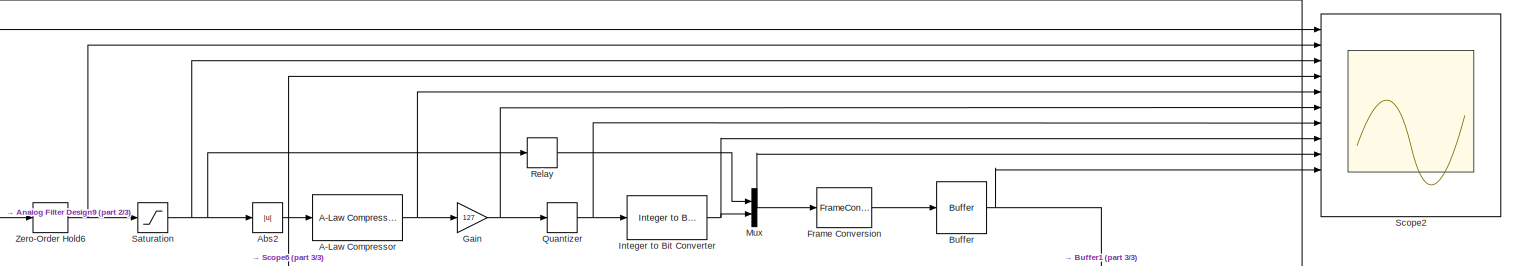
[diagram: root canvas - part 1/3, full width, top band]
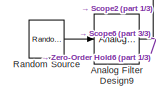
[diagram: root canvas - part 2/3, middle left region]
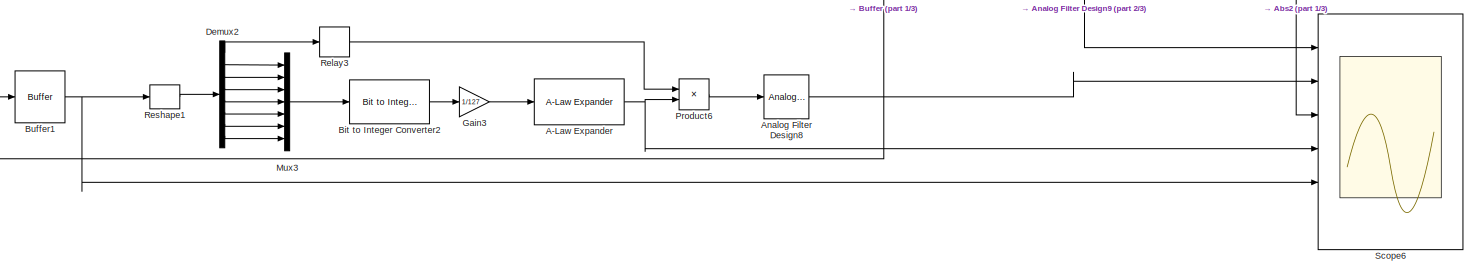
[diagram: root canvas - part 3/3, full width, bottom band]
MODEL slx_117281fb664f
KIND model
CONFIG AbsTol = auto
CONFIG EnableMultiTasking = off
CONFIG FixedStep = 0.001
CONFIG MaxStep = auto
CONFIG MinStep = auto
CONFIG RelTol = 1e-3
CONFIG SampleTimeConstraint = Unconstrained
CONFIG Solver = FixedStepAuto
CONFIG SolverName = FixedStepAuto
CONFIG StartTime = 0.0
CONFIG StopTime = 80
BLOCK [Reference] A-Law Compressor  REF=commsrccod2/A-Law
Compressor
  Ports = [1, 1]
  SourceBlock = commsrccod2/A-Law\nCompressor
  SourceProductBaseCode = CM
  SourceProductName = Communications System Toolbox
  SourceType = A-Law Compressor
BLOCK [Reference] A-Law Expander  REF=commsrccod2/A-Law
Expander
  Ports = [1, 1]
  SourceBlock = commsrccod2/A-Law\nExpander
  SourceProductBaseCode = CM
  SourceProductName = Communications System Toolbox
  SourceType = A-Law Expander
BLOCK [Abs] Abs2
  SaturateOnIntegerOverflow = off
BLOCK [Reference] Analog Filter Design8  REF=dsparch4/Analog
Filter Design
  Ports = [1, 1]
  SourceBlock = dsparch4/Analog\nFilter Design
  SourceProductBaseCode = DS
  SourceProductName = DSP System Toolbox
  SourceType = Analog Filter Design
BLOCK [Reference] Analog Filter Design9  REF=dsparch4/Analog
Filter Design
  Ports = [1, 1]
  SourceBlock = dsparch4/Analog\nFilter Design
  SourceProductBaseCode = DS
  SourceProductName = DSP System Toolbox
  SourceType = Analog Filter Design
BLOCK [Reference] Bit to Integer Converter2  REF=commutil2/Bit to Integer
Converter
  Ports = [1, 1]
  SourceBlock = commutil2/Bit to Integer\nConverter
  SourceProductBaseCode = CM
  SourceProductName = Communications System Toolbox
  SourceType = Bit to Integer Converter
BLOCK [Buffer] Buffer
  N = 1
  OutputFrames = off
BLOCK [Buffer] Buffer1
  N = 8
  OutputFrames = off
BLOCK [Demux] Demux2
  DisplayOption = bar
  Outputs = 8
  Ports = [1, 8]
BLOCK [FrameConversion] Frame Conversion
  Ports = [1, 1]
BLOCK [Gain] Gain
  Gain = 127
  OutDataTypeStr = Inherit: Inherit via internal rule
  ParamDataTypeStr = Inherit: Inherit via internal rule
  SaturateOnIntegerOverflow = off
BLOCK [Gain] Gain3
  Gain = 1/127
  OutDataTypeStr = Inherit: Inherit via internal rule
  ParamDataTypeStr = Inherit: Inherit via internal rule
  SaturateOnIntegerOverflow = off
BLOCK [Reference] Integer to Bit Converter  REF=commutil2/Integer to Bit
Converter
  Ports = [1, 1]
  SourceBlock = commutil2/Integer to Bit\nConverter
  SourceProductBaseCode = CM
  SourceProductName = Communications System Toolbox
  SourceType = Integer to Bit Converter
BLOCK [Mux] Mux
  DisplayOption = bar
  Inputs = 2
  Ports = [2, 1]
BLOCK [Mux] Mux3
  DisplayOption = bar
  Inputs = 7
  Ports = [7, 1]
BLOCK [Product] Product6
  InputSameDT = off
  OutDataTypeStr = Inherit: Inherit via internal rule
  Ports = [2, 1]
  SaturateOnIntegerOverflow = off
BLOCK [Quantizer] Quantizer
  QuantizationInterval = 1
BLOCK [Reference] Random Source  REF=dspsrcs4/Random
Source
  Ports = [0, 1]
  SourceBlock = dspsrcs4/Random\nSource
  SourceProductBaseCode = DS
  SourceProductName = DSP System Toolbox
  SourceType = Random Source
  UserDataPersistent = on
BLOCK [Relay] Relay
  InputProcessing = Elements as channels (sample based)
BLOCK [Relay] Relay3
  OffOutputValue = -1
BLOCK [Reshape] Reshape1
  Ports = [1, 1]
BLOCK [Saturate] Saturation
  InputPortMap = u0
  LowerLimit = -1
  Ports = [1, 1]
  UpperLimit = 1
BLOCK [Scope] Scope2
  Floating = off
  NumInputPorts = 12
  Ports = [12]
  ScopeSpecificationString = Simulink.scopes.TimeScopeBlockCfg('CurrentConfiguration', extmgr.ConfigurationSet(extmgr.Configuration('Core','General UI',true),extmgr.Configuration('Core','Source UI',true),extmgr.Configuration('Sources','WiredSimulink',true,'DataLoggingVariableName','ScopeData1'),extmgr.Configuration('Visuals','Time Domain',true,'SerializedDisplays',{struct('MinYLimReal','-0.0739','MaxYLimReal','0.06876','YLabe...<+9488ch>
BLOCK [Scope] Scope6
  Floating = off
  NumInputPorts = 6
  Ports = [6]
  ScopeSpecificationString = Simulink.scopes.TimeScopeBlockCfg('CurrentConfiguration', extmgr.ConfigurationSet(extmgr.Configuration('Core','General UI',true,'FigureColor',[0.941176470588235 0.941176470588235 0.941176470588235]),extmgr.Configuration('Core','Source UI',true),extmgr.Configuration('Sources','WiredSimulink',true),extmgr.Configuration('Visuals','Time Domain',true,'SerializedDisplays',{struct('MinYLimReal','-0.11193...<+7331ch>
BLOCK [ZeroOrderHold] Zero-Order Hold6
NET A-Law Compressor:1 -> Gain:1, Scope2:5
NET A-Law Expander:1 -> Product6:2, Scope6:4
NET Abs2:1 -> A-Law Compressor:1, Scope2:4, Scope6:3
LINE Analog Filter Design8:1 -> Scope6:2
NET Analog Filter Design9:1 -> Scope2:1, Scope6:1, Zero-Order Hold6:1
LINE Bit to Integer Converter2:1 -> Gain3:1
NET Buffer1:1 -> Reshape1:1, Scope6:5
NET Buffer:1 -> Buffer1:1, Scope2:10
LINE Demux2:1 -> Relay3:1
LINE Demux2:2 -> Mux3:1
LINE Demux2:3 -> Mux3:2
LINE Demux2:4 -> Mux3:3
LINE Demux2:5 -> Mux3:4
LINE Demux2:6 -> Mux3:5
LINE Demux2:7 -> Mux3:6
LINE Demux2:8 -> Mux3:7
LINE Frame Conversion:1 -> Buffer:1
LINE Gain3:1 -> A-Law Expander:1
NET Gain:1 -> Quantizer:1, Scope2:6
NET Integer to Bit Converter:1 -> Mux:2, Scope2:8
LINE Mux3:1 -> Bit to Integer Converter2:1
NET Mux:1 -> Frame Conversion:1, Scope2:9
LINE Product6:1 -> Analog Filter Design8:1
NET Quantizer:1 -> Integer to Bit Converter:1, Scope2:7
LINE Random Source:1 -> Analog Filter Design9:1
LINE Relay3:1 -> Product6:1
LINE Relay:1 -> Mux:1
LINE Reshape1:1 -> Demux2:1
NET Saturation:1 -> Abs2:1, Relay:1, Scope2:3
NET Zero-Order Hold6:1 -> Saturation:1, Scope2:2
note: NET lines group one-source signal fan-out (src -> all destinations, sorted); 1:1 wires keep LINE
